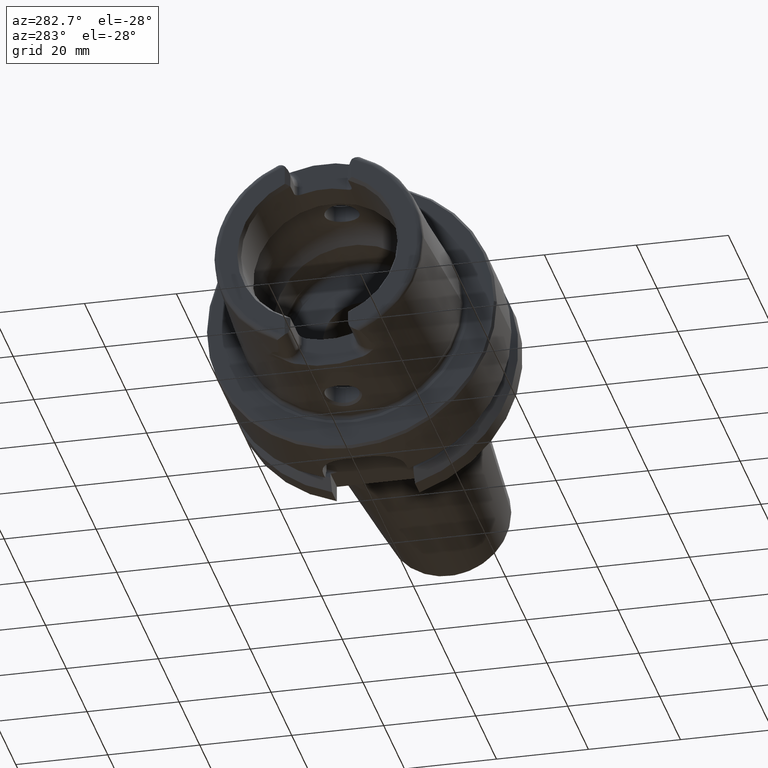
[diagram: clean part render]
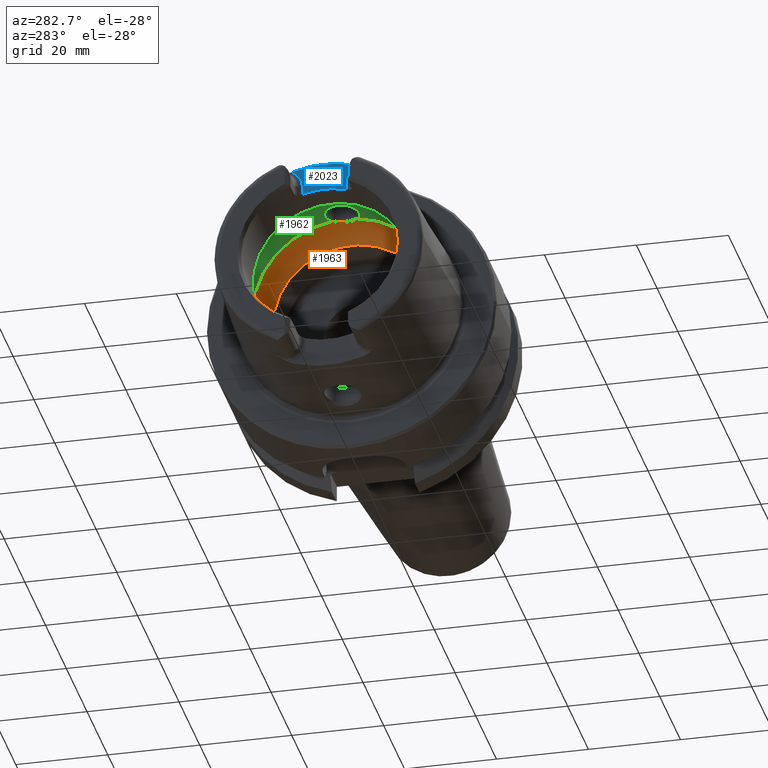
[diagram: same view with three faces highlighted in distinct colors, each labeled with its STEP entity id]
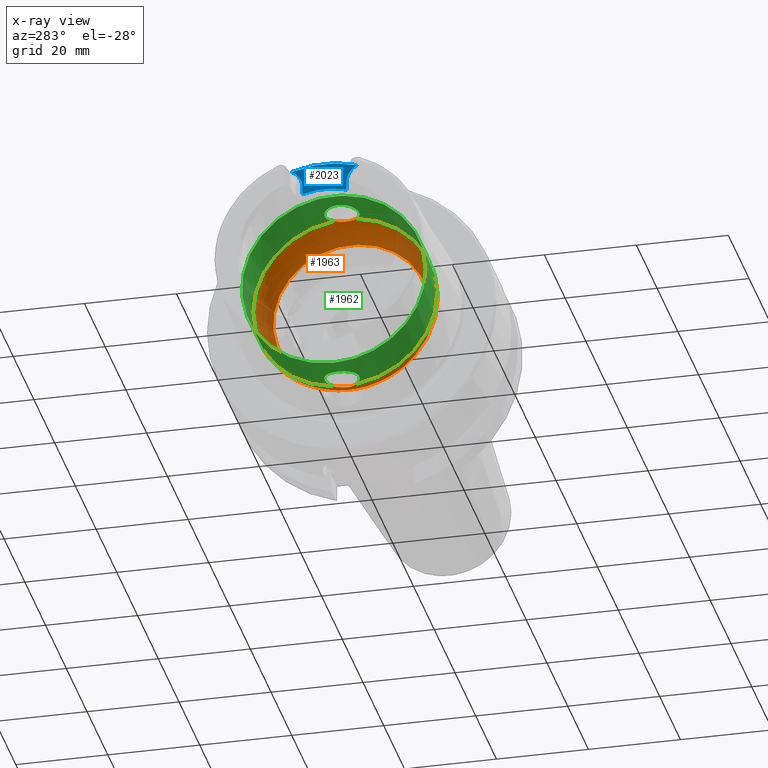
[diagram: x-ray of the same camera — body ghosted, the three highlighted faces saturated]
A machine part, auxiliary view with three faces highlighted in distinct colors.
The next image is the same camera in x-ray (body ghosted, the three faces saturated) — at least one of them is partly hidden behind the body in this view.
Their STEP definitions:

[orange] entity #1963 — the highlighted toroidal blend (fillet) surface has major radius 12 mm and minor (blend) radius 8 mm.
#49=B_SPLINE_CURVE_WITH_KNOTS('',3,(#3456,#3457,#3458,#3459,#3460,#3461,
#3462,#3463,#3464,#3465,#3466,#3467),.UNSPECIFIED.,.F.,.F.,(4,2,2,2,2,4),
(-0.560647090003115,-0.432465132423936,-0.371738630353782,-0.32053783623797,
-0.287500355516274,-0.280385270121909),.UNSPECIFIED.);
#51=B_SPLINE_CURVE_WITH_KNOTS('',3,(#3500,#3501,#3502,#3503,#3504,#3505,
#3506,#3507,#3508,#3509),.UNSPECIFIED.,.F.,.F.,(4,2,2,2,4),(-0.280385270121909,
-0.256917987419631,-0.21744735037608,-0.138661357565599,0.),
 .UNSPECIFIED.);
#54=B_SPLINE_CURVE_WITH_KNOTS('',3,(#3625,#3626,#3627,#3628,#3629,#3630,
#3631,#3632,#3633,#3634,#3635,#3636),.UNSPECIFIED.,.F.,.F.,(4,2,2,2,2,4),
(-0.560647090003256,-0.432465132424011,-0.371738630353825,-0.32053783623799,
-0.287500355516289,-0.280385270121924),.UNSPECIFIED.);
#56=B_SPLINE_CURVE_WITH_KNOTS('',3,(#3669,#3670,#3671,#3672,#3673,#3674,
#3675,#3676,#3677,#3678),.UNSPECIFIED.,.F.,.F.,(4,2,2,2,4),(-0.280385270121924,
-0.256917987419636,-0.217447350376074,-0.138661357565593,0.),
 .UNSPECIFIED.);
#152=TOROIDAL_SURFACE('',#2150,12.,8.);
#238=FACE_OUTER_BOUND('',#360,.T.);
#360=EDGE_LOOP('',(#1472,#1473,#1474,#1475,#1476,#1477,#1478,#1479,#1480,
#1481,#1482));
#699=CIRCLE('',#2145,20.);
#702=CIRCLE('',#2148,20.);
#703=CIRCLE('',#2149,20.);
#704=CIRCLE('',#2151,17.);
#705=CIRCLE('',#2152,17.);
#706=CIRCLE('',#2153,8.);
#867=VERTEX_POINT('',#3453);
#868=VERTEX_POINT('',#3455);
#869=VERTEX_POINT('',#3468);
#872=VERTEX_POINT('',#3623);
#873=VERTEX_POINT('',#3624);
#874=VERTEX_POINT('',#3637);
#875=VERTEX_POINT('',#3681);
#878=VERTEX_POINT('',#3691);
#879=VERTEX_POINT('',#3692);
#1092=EDGE_CURVE('',#868,#867,#49,.T.);
#1094=EDGE_CURVE('',#867,#869,#51,.T.);
#1098=EDGE_CURVE('',#872,#873,#54,.T.);
#1100=EDGE_CURVE('',#873,#874,#56,.T.);
#1102=EDGE_CURVE('',#875,#872,#699,.T.);
#1106=EDGE_CURVE('',#869,#875,#702,.T.);
#1107=EDGE_CURVE('',#874,#868,#703,.T.);
#1108=EDGE_CURVE('',#878,#879,#704,.T.);
#1109=EDGE_CURVE('',#879,#878,#705,.T.);
#1110=EDGE_CURVE('',#879,#867,#706,.T.);
#1472=ORIENTED_EDGE('',*,*,#1108,.F.);
#1473=ORIENTED_EDGE('',*,*,#1109,.F.);
#1474=ORIENTED_EDGE('',*,*,#1110,.T.);
#1475=ORIENTED_EDGE('',*,*,#1094,.T.);
#1476=ORIENTED_EDGE('',*,*,#1106,.T.);
#1477=ORIENTED_EDGE('',*,*,#1102,.T.);
#1478=ORIENTED_EDGE('',*,*,#1098,.T.);
#1479=ORIENTED_EDGE('',*,*,#1100,.T.);
#1480=ORIENTED_EDGE('',*,*,#1107,.T.);
#1481=ORIENTED_EDGE('',*,*,#1092,.T.);
#1482=ORIENTED_EDGE('',*,*,#1110,.F.);
#1963=ADVANCED_FACE('',(#238),#152,.F.);
#2145=AXIS2_PLACEMENT_3D('',#3682,#2509,#2510);
#2148=AXIS2_PLACEMENT_3D('',#3688,#2516,#2517);
#2149=AXIS2_PLACEMENT_3D('',#3689,#2518,#2519);
#2150=AXIS2_PLACEMENT_3D('',#3690,#2520,#2521);
#2151=AXIS2_PLACEMENT_3D('',#3693,#2522,#2523);
#2152=AXIS2_PLACEMENT_3D('',#3694,#2524,#2525);
#2153=AXIS2_PLACEMENT_3D('',#3695,#2526,#2527);
#2509=DIRECTION('center_axis',(-1.,0.,0.));
#2510=DIRECTION('ref_axis',(0.,0.,1.));
#2516=DIRECTION('center_axis',(-1.,0.,0.));
#2517=DIRECTION('ref_axis',(0.,0.,1.));
#2518=DIRECTION('center_axis',(-1.,0.,0.));
#2519=DIRECTION('ref_axis',(0.,0.,1.));
#2520=DIRECTION('center_axis',(-1.,0.,0.));
#2521=DIRECTION('ref_axis',(0.,0.,1.));
#2522=DIRECTION('center_axis',(-1.,0.,0.));
#2523=DIRECTION('ref_axis',(0.,0.,1.));
#2524=DIRECTION('center_axis',(-1.,0.,0.));
#2525=DIRECTION('ref_axis',(0.,0.,1.));
#2526=DIRECTION('center_axis',(0.,1.,-1.22464679914735E-16));
#2527=DIRECTION('ref_axis',(0.,-1.22464679914735E-16,-1.));
#3453=CARTESIAN_POINT('',(-5.25,3.07683831259085E-16,-19.9378825251564));
#3455=CARTESIAN_POINT('',(-6.2449979983984,2.54410376580264,-19.8375284758165));
#3456=CARTESIAN_POINT('Ctrl Pts',(-6.2449979983984,2.54410376580263,-19.8375284758165));
#3457=CARTESIAN_POINT('Ctrl Pts',(-5.9563832733696,2.23156378381208,-19.877610794847));
#3458=CARTESIAN_POINT('Ctrl Pts',(-5.72238184052007,1.87139505615745,-19.9007586679726));
#3459=CARTESIAN_POINT('Ctrl Pts',(-5.47415257397377,1.29299577523533,-19.9221291461079));
#3460=CARTESIAN_POINT('Ctrl Pts',(-5.40951125063364,1.10084807786171,-19.9269865934584));
#3461=CARTESIAN_POINT('Ctrl Pts',(-5.31953029252225,0.738763665580492,-19.9333991732415));
#3462=CARTESIAN_POINT('Ctrl Pts',(-5.28971989928313,0.57048989328573,-19.9353426103026));
#3463=CARTESIAN_POINT('Ctrl Pts',(-5.25970604483208,0.291260075331645,-19.9372753146995));
#3464=CARTESIAN_POINT('Ctrl Pts',(-5.25276504295341,0.181279004510485,-19.9377089305339));
#3465=CARTESIAN_POINT('Ctrl Pts',(-5.25022501552319,0.0474369436209427,
-19.9378684144199));
#3466=CARTESIAN_POINT('Ctrl Pts',(-5.25,0.0237178817918345,-19.9378825251564));
#3467=CARTESIAN_POINT('Ctrl Pts',(-5.25,1.73633857888389E-16,-19.9378825251564));
#3468=CARTESIAN_POINT('',(-6.2449979983984,-2.54410376580264,-19.8375284758165));
#3500=CARTESIAN_POINT('Ctrl Pts',(-5.25,1.73633857888389E-16,-19.9378825251564));
#3501=CARTESIAN_POINT('Ctrl Pts',(-5.25,-0.0782273446147222,-19.9378825251564));
#3502=CARTESIAN_POINT('Ctrl Pts',(-5.25244785081342,-0.15644185230388,-19.9377296492436));
#3503=CARTESIAN_POINT('Ctrl Pts',(-5.26557067654327,-0.365860616871457,
-19.9368989370107));
#3504=CARTESIAN_POINT('Ctrl Pts',(-5.2807081654794,-0.496671474530444,-19.9359382432917));
#3505=CARTESIAN_POINT('Ctrl Pts',(-5.34656166936447,-0.885366242555149,
-19.9315392091305));
#3506=CARTESIAN_POINT('Ctrl Pts',(-5.41752174824152,-1.13897710923821,-19.9266508951874));
#3507=CARTESIAN_POINT('Ctrl Pts',(-5.68473945553282,-1.81246400136134,-19.9044561094296));
#3508=CARTESIAN_POINT('Ctrl Pts',(-5.93280828188796,-2.20603449935731,-19.880884849314));
#3509=CARTESIAN_POINT('Ctrl Pts',(-6.2449979983984,-2.54410376580263,-19.8375284758165));
#3623=CARTESIAN_POINT('',(-6.2449979983984,-2.54410376580264,19.8375284758165));
#3624=CARTESIAN_POINT('',(-5.25,4.81156178856766E-16,19.9378825251564));
#3625=CARTESIAN_POINT('Ctrl Pts',(-6.2449979983984,-2.54410376580264,19.8375284758165));
#3626=CARTESIAN_POINT('Ctrl Pts',(-5.9563832733696,-2.23156378381209,19.877610794847));
#3627=CARTESIAN_POINT('Ctrl Pts',(-5.72238184052007,-1.87139505615746,19.9007586679726));
#3628=CARTESIAN_POINT('Ctrl Pts',(-5.47415257397376,-1.29299577523533,19.9221291461079));
#3629=CARTESIAN_POINT('Ctrl Pts',(-5.40951125063363,-1.10084807786172,19.9269865934584));
#3630=CARTESIAN_POINT('Ctrl Pts',(-5.31953029252225,-0.738763665580501,
19.9333991732415));
#3631=CARTESIAN_POINT('Ctrl Pts',(-5.28971989928313,-0.570489893285745,
19.9353426103026));
#3632=CARTESIAN_POINT('Ctrl Pts',(-5.25970604483207,-0.291260075331669,
19.9372753146995));
#3633=CARTESIAN_POINT('Ctrl Pts',(-5.2527650429534,-0.181279004510531,19.9377089305339));
#3634=CARTESIAN_POINT('Ctrl Pts',(-5.25022501552319,-0.0474369436209401,
19.9378684144199));
#3635=CARTESIAN_POINT('Ctrl Pts',(-5.25,-0.0237178817918311,19.9378825251564));
#3636=CARTESIAN_POINT('Ctrl Pts',(-5.25,5.15920899939407E-16,19.9378825251564));
#3637=CARTESIAN_POINT('',(-6.2449979983984,2.54410376580264,19.8375284758165));
#3669=CARTESIAN_POINT('Ctrl Pts',(-5.25,5.15920899939407E-16,19.9378825251564));
#3670=CARTESIAN_POINT('Ctrl Pts',(-5.25,0.0782273446147462,19.9378825251564));
#3671=CARTESIAN_POINT('Ctrl Pts',(-5.25244785081342,0.156441852303891,19.9377296492436));
#3672=CARTESIAN_POINT('Ctrl Pts',(-5.26557067654326,0.36586061687142,19.9368989370107));
#3673=CARTESIAN_POINT('Ctrl Pts',(-5.28070816547939,0.496671474530425,19.9359382432917));
#3674=CARTESIAN_POINT('Ctrl Pts',(-5.34656166936446,0.885366242555101,19.9315392091305));
#3675=CARTESIAN_POINT('Ctrl Pts',(-5.41752174824151,1.13897710923819,19.9266508951874));
#3676=CARTESIAN_POINT('Ctrl Pts',(-5.68473945553283,1.81246400136138,19.9044561094296));
#3677=CARTESIAN_POINT('Ctrl Pts',(-5.93280828188797,2.20603449935733,19.880884849314));
#3678=CARTESIAN_POINT('Ctrl Pts',(-6.2449979983984,2.54410376580264,19.8375284758165));
#3681=CARTESIAN_POINT('',(-6.2449979983984,-20.,2.44929359829471E-15));
#3682=CARTESIAN_POINT('Origin',(-6.2449979983984,0.,0.));
#3688=CARTESIAN_POINT('Origin',(-6.2449979983984,0.,0.));
#3689=CARTESIAN_POINT('Origin',(-6.2449979983984,0.,0.));
#3690=CARTESIAN_POINT('Origin',(-6.2449979983984,0.,0.));
#3691=CARTESIAN_POINT('',(0.,-17.,2.0818995585505E-15));
#3692=CARTESIAN_POINT('',(0.,-2.0818995585505E-15,-17.));
#3693=CARTESIAN_POINT('Origin',(0.,0.,0.));
#3694=CARTESIAN_POINT('Origin',(0.,0.,0.));
#3695=CARTESIAN_POINT('Origin',(-6.2449979983984,-1.46957615897682E-15,
-12.));

[blue] entity #2023 — the highlighted planar face has unit normal (-1, 0, 0).
#142=PLANE('',#2260);
#298=FACE_OUTER_BOUND('',#421,.T.);
#421=EDGE_LOOP('',(#1792,#1793,#1794,#1795,#1796,#1797));
#541=LINE('',#4207,#647);
#542=LINE('',#4236,#648);
#647=VECTOR('',#2738,10.);
#648=VECTOR('',#2751,10.);
#697=CIRCLE('',#2140,23.0180260521042);
#742=CIRCLE('',#2236,4.38);
#744=CIRCLE('',#2239,4.38);
#754=CIRCLE('',#2261,17.);
#864=VERTEX_POINT('',#3398);
#865=VERTEX_POINT('',#3413);
#958=VERTEX_POINT('',#4204);
#959=VERTEX_POINT('',#4206);
#960=VERTEX_POINT('',#4221);
#961=VERTEX_POINT('',#4225);
#1087=EDGE_CURVE('',#864,#865,#697,.T.);
#1234=EDGE_CURVE('',#958,#959,#541,.T.);
#1236=EDGE_CURVE('',#865,#958,#742,.T.);
#1238=EDGE_CURVE('',#960,#864,#744,.T.);
#1240=EDGE_CURVE('',#961,#960,#542,.T.);
#1256=EDGE_CURVE('',#959,#961,#754,.T.);
#1792=ORIENTED_EDGE('',*,*,#1236,.F.);
#1793=ORIENTED_EDGE('',*,*,#1087,.F.);
#1794=ORIENTED_EDGE('',*,*,#1238,.F.);
#1795=ORIENTED_EDGE('',*,*,#1240,.F.);
#1796=ORIENTED_EDGE('',*,*,#1256,.F.);
#1797=ORIENTED_EDGE('',*,*,#1234,.F.);
#2023=ADVANCED_FACE('',(#298),#142,.T.);
#2140=AXIS2_PLACEMENT_3D('',#3414,#2496,#2497);
#2236=AXIS2_PLACEMENT_3D('',#4219,#2741,#2742);
#2239=AXIS2_PLACEMENT_3D('',#4223,#2747,#2748);
#2260=AXIS2_PLACEMENT_3D('',#4284,#2794,#2795);
#2261=AXIS2_PLACEMENT_3D('',#4285,#2796,#2797);
#2496=DIRECTION('center_axis',(1.,0.,0.));
#2497=DIRECTION('ref_axis',(0.,1.,0.));
#2738=DIRECTION('',(0.,-1.58830189502884E-16,-1.));
#2741=DIRECTION('center_axis',(-1.,0.,0.));
#2742=DIRECTION('ref_axis',(0.,0.601141749549969,0.799142413433302));
#2747=DIRECTION('center_axis',(-1.,0.,0.));
#2748=DIRECTION('ref_axis',(0.,-0.601141749549969,0.799142413433301));
#2751=DIRECTION('',(0.,-1.58830189502884E-16,1.));
#2794=DIRECTION('center_axis',(-1.,0.,0.));
#2795=DIRECTION('ref_axis',(0.,0.,1.));
#2796=DIRECTION('center_axis',(-1.,0.,0.));
#2797=DIRECTION('ref_axis',(0.,1.,0.));
#3398=CARTESIAN_POINT('',(-26.,7.14127219004964,21.8822246319466));
#3413=CARTESIAN_POINT('',(-26.,-7.14127219004964,21.8822246319466));
#3414=CARTESIAN_POINT('Origin',(-26.,0.,0.));
#4204=CARTESIAN_POINT('',(-26.,-4.77,17.99));
#4206=CARTESIAN_POINT('',(-26.,-4.77,16.3170800083839));
#4207=CARTESIAN_POINT('',(-26.,-4.77,14.75));
#4219=CARTESIAN_POINT('Origin',(-26.,-9.15,17.99));
#4221=CARTESIAN_POINT('',(-26.,4.77,17.99));
#4223=CARTESIAN_POINT('Origin',(-26.,9.15,17.99));
#4225=CARTESIAN_POINT('',(-26.,4.77,16.3170800083839));
#4236=CARTESIAN_POINT('',(-26.,4.77,18.245));
#4284=CARTESIAN_POINT('Origin',(-26.,-2.22044604925031E-15,18.5));
#4285=CARTESIAN_POINT('Origin',(-26.,0.,0.));

[green] entity #1962 — the highlighted cylindrical surface (bore or boss wall) has radius 20 mm, axis along (-1, 0, 0).
#50=B_SPLINE_CURVE_WITH_KNOTS('',3,(#3469,#3470,#3471,#3472,#3473,#3474,
#3475,#3476,#3477,#3478,#3479,#3480,#3481,#3482,#3483,#3484,#3485,#3486,
#3487,#3488,#3489,#3490,#3491,#3492,#3493,#3494,#3495,#3496,#3497,#3498,
#3499),.UNSPECIFIED.,.F.,.F.,(4,2,2,2,2,2,2,2,2,2,2,3,2,2,4),(-1.43107314142755,
-1.4161913421645,-1.27456976724955,-1.1329481923346,-0.991326617419658,
-0.849705042504712,-0.708089569336007,-0.566474096167302,-0.424858622998598,
-0.283243149829893,-0.141621574914946,0.,0.141621574914946,0.283243149829893,
0.298124949100151),.UNSPECIFIED.);
#55=B_SPLINE_CURVE_WITH_KNOTS('',3,(#3638,#3639,#3640,#3641,#3642,#3643,
#3644,#3645,#3646,#3647,#3648,#3649,#3650,#3651,#3652,#3653,#3654,#3655,
#3656,#3657,#3658,#3659,#3660,#3661,#3662,#3663,#3664,#3665,#3666,#3667,
#3668),.UNSPECIFIED.,.F.,.F.,(4,2,2,3,2,2,2,2,2,2,2,2,2,2,4),(-0.298124949092949,
-0.283243149829893,-0.141621574914946,0.,0.141621574914946,0.283243149829893,
0.424858622998598,0.566474096167302,0.708089569336007,0.849705042504712,
0.991326617419658,1.1329481923346,1.27456976724955,1.4161913421645,1.43107314143475),
 .UNSPECIFIED.);
#184=CYLINDRICAL_SURFACE('',#2144,20.);
#237=FACE_OUTER_BOUND('',#359,.T.);
#359=EDGE_LOOP('',(#1463,#1464,#1465,#1466,#1467,#1468,#1469,#1470,#1471));
#492=LINE('',#3684,#598);
#598=VECTOR('',#2511,20.);
#699=CIRCLE('',#2145,20.);
#700=CIRCLE('',#2146,20.);
#701=CIRCLE('',#2147,20.);
#702=CIRCLE('',#2148,20.);
#703=CIRCLE('',#2149,20.);
#868=VERTEX_POINT('',#3455);
#869=VERTEX_POINT('',#3468);
#872=VERTEX_POINT('',#3623);
#874=VERTEX_POINT('',#3637);
#875=VERTEX_POINT('',#3681);
#876=VERTEX_POINT('',#3683);
#877=VERTEX_POINT('',#3685);
#1093=EDGE_CURVE('',#869,#868,#50,.T.);
#1099=EDGE_CURVE('',#874,#872,#55,.T.);
#1102=EDGE_CURVE('',#875,#872,#699,.T.);
#1103=EDGE_CURVE('',#875,#876,#492,.T.);
#1104=EDGE_CURVE('',#876,#877,#700,.T.);
#1105=EDGE_CURVE('',#877,#876,#701,.T.);
#1106=EDGE_CURVE('',#869,#875,#702,.T.);
#1107=EDGE_CURVE('',#874,#868,#703,.T.);
#1463=ORIENTED_EDGE('',*,*,#1099,.T.);
#1464=ORIENTED_EDGE('',*,*,#1102,.F.);
#1465=ORIENTED_EDGE('',*,*,#1103,.T.);
#1466=ORIENTED_EDGE('',*,*,#1104,.T.);
#1467=ORIENTED_EDGE('',*,*,#1105,.T.);
#1468=ORIENTED_EDGE('',*,*,#1103,.F.);
#1469=ORIENTED_EDGE('',*,*,#1106,.F.);
#1470=ORIENTED_EDGE('',*,*,#1093,.T.);
#1471=ORIENTED_EDGE('',*,*,#1107,.F.);
#1962=ADVANCED_FACE('',(#237),#184,.F.);
#2144=AXIS2_PLACEMENT_3D('',#3680,#2507,#2508);
#2145=AXIS2_PLACEMENT_3D('',#3682,#2509,#2510);
#2146=AXIS2_PLACEMENT_3D('',#3686,#2512,#2513);
#2147=AXIS2_PLACEMENT_3D('',#3687,#2514,#2515);
#2148=AXIS2_PLACEMENT_3D('',#3688,#2516,#2517);
#2149=AXIS2_PLACEMENT_3D('',#3689,#2518,#2519);
#2507=DIRECTION('center_axis',(-1.,0.,0.));
#2508=DIRECTION('ref_axis',(0.,1.,0.));
#2509=DIRECTION('center_axis',(-1.,0.,0.));
#2510=DIRECTION('ref_axis',(0.,0.,1.));
#2511=DIRECTION('',(-1.,0.,0.));
#2512=DIRECTION('center_axis',(-1.,0.,0.));
#2513=DIRECTION('ref_axis',(0.,0.,1.));
#2514=DIRECTION('center_axis',(-1.,0.,0.));
#2515=DIRECTION('ref_axis',(0.,0.,1.));
#2516=DIRECTION('center_axis',(-1.,0.,0.));
#2517=DIRECTION('ref_axis',(0.,0.,1.));
#2518=DIRECTION('center_axis',(-1.,0.,0.));
#2519=DIRECTION('ref_axis',(0.,0.,1.));
#3455=CARTESIAN_POINT('',(-6.2449979983984,2.54410376580264,-19.8375284758165));
#3468=CARTESIAN_POINT('',(-6.2449979983984,-2.54410376580264,-19.8375284758165));
#3469=CARTESIAN_POINT('Ctrl Pts',(-6.2449979983984,-2.54410376580264,-19.8375284758165));
#3470=CARTESIAN_POINT('Ctrl Pts',(-6.27894943420456,-2.58086966932454,-19.8328133585216));
#3471=CARTESIAN_POINT('Ctrl Pts',(-6.31342869219743,-2.61672955109653,-19.8281105439642));
#3472=CARTESIAN_POINT('Ctrl Pts',(-6.68067160381732,-2.98397246271642,-19.7789868876592));
#3473=CARTESIAN_POINT('Ctrl Pts',(-7.10159661632629,-3.27238367725626,-19.731429741537));
#3474=CARTESIAN_POINT('Ctrl Pts',(-8.0251754070192,-3.65542701546408,-19.6640704965084));
#3475=CARTESIAN_POINT('Ctrl Pts',(-8.52792808361685,-3.75,-19.6452920568771));
#3476=CARTESIAN_POINT('Ctrl Pts',(-9.47207191638316,-3.75,-19.6452920568771));
#3477=CARTESIAN_POINT('Ctrl Pts',(-9.97482459298081,-3.65542701546408,-19.6640704965084));
#3478=CARTESIAN_POINT('Ctrl Pts',(-10.8984033836737,-3.27238367725626,-19.731429741537));
#3479=CARTESIAN_POINT('Ctrl Pts',(-11.3193283961827,-2.98397246271642,-19.7789868876592));
#3480=CARTESIAN_POINT('Ctrl Pts',(-11.9839581446669,-2.31934271423217,-19.8678900149943));
#3481=CARTESIAN_POINT('Ctrl Pts',(-12.2723805817074,-1.89841159537053,-19.9150796801946));
#3482=CARTESIAN_POINT('Ctrl Pts',(-12.6554320620407,-0.974811677040414,
-19.9815942165963));
#3483=CARTESIAN_POINT('Ctrl Pts',(-12.75,-0.472051577229017,-20.));
#3484=CARTESIAN_POINT('Ctrl Pts',(-12.75,0.472051577229015,-20.));
#3485=CARTESIAN_POINT('Ctrl Pts',(-12.6554320620407,0.974811677040408,-19.9815942165963));
#3486=CARTESIAN_POINT('Ctrl Pts',(-12.2723805817074,1.89841159537052,-19.9150796801946));
#3487=CARTESIAN_POINT('Ctrl Pts',(-11.9839581446669,2.31934271423217,-19.8678900149943));
#3488=CARTESIAN_POINT('Ctrl Pts',(-11.3193283961827,2.98397246271642,-19.7789868876592));
#3489=CARTESIAN_POINT('Ctrl Pts',(-10.8984033836737,3.27238367725626,-19.731429741537));
#3490=CARTESIAN_POINT('Ctrl Pts',(-9.97482459298081,3.65542701546408,-19.6640704965084));
#3491=CARTESIAN_POINT('Ctrl Pts',(-9.47207191638316,3.75,-19.6452920568771));
#3492=CARTESIAN_POINT('Ctrl Pts',(-9.,3.75,-19.6452920568771));
#3493=CARTESIAN_POINT('Ctrl Pts',(-8.52792808361685,3.75,-19.6452920568771));
#3494=CARTESIAN_POINT('Ctrl Pts',(-8.0251754070192,3.65542701546408,-19.6640704965084));
#3495=CARTESIAN_POINT('Ctrl Pts',(-7.10159661632629,3.27238367725626,-19.731429741537));
#3496=CARTESIAN_POINT('Ctrl Pts',(-6.68067160381732,2.98397246271642,-19.7789868876592));
#3497=CARTESIAN_POINT('Ctrl Pts',(-6.31342869218053,2.61672955107963,-19.8281105439665));
#3498=CARTESIAN_POINT('Ctrl Pts',(-6.27894943419011,2.5808696693089,-19.8328133585236));
#3499=CARTESIAN_POINT('Ctrl Pts',(-6.2449979983984,2.54410376580264,-19.8375284758165));
#3623=CARTESIAN_POINT('',(-6.2449979983984,-2.54410376580264,19.8375284758165));
#3637=CARTESIAN_POINT('',(-6.2449979983984,2.54410376580264,19.8375284758165));
#3638=CARTESIAN_POINT('Ctrl Pts',(-6.2449979983984,2.54410376580264,19.8375284758165));
#3639=CARTESIAN_POINT('Ctrl Pts',(-6.27894943420456,2.58086966932454,19.8328133585216));
#3640=CARTESIAN_POINT('Ctrl Pts',(-6.31342869219742,2.61672955109653,19.8281105439642));
#3641=CARTESIAN_POINT('Ctrl Pts',(-6.68067160381731,2.98397246271642,19.7789868876592));
#3642=CARTESIAN_POINT('Ctrl Pts',(-7.10159661632629,3.27238367725626,19.731429741537));
#3643=CARTESIAN_POINT('Ctrl Pts',(-8.02517540701919,3.65542701546408,19.6640704965084));
#3644=CARTESIAN_POINT('Ctrl Pts',(-8.52792808361684,3.75,19.6452920568771));
#3645=CARTESIAN_POINT('Ctrl Pts',(-9.,3.75,19.6452920568771));
#3646=CARTESIAN_POINT('Ctrl Pts',(-9.47207191638315,3.75,19.6452920568771));
#3647=CARTESIAN_POINT('Ctrl Pts',(-9.97482459298081,3.65542701546408,19.6640704965084));
#3648=CARTESIAN_POINT('Ctrl Pts',(-10.8984033836737,3.27238367725626,19.731429741537));
#3649=CARTESIAN_POINT('Ctrl Pts',(-11.3193283961827,2.98397246271642,19.7789868876592));
#3650=CARTESIAN_POINT('Ctrl Pts',(-11.9839581446669,2.31934271423217,19.8678900149943));
#3651=CARTESIAN_POINT('Ctrl Pts',(-12.2723805817074,1.89841159537052,19.9150796801946));
#3652=CARTESIAN_POINT('Ctrl Pts',(-12.6554320620407,0.97481167704041,19.9815942165963));
#3653=CARTESIAN_POINT('Ctrl Pts',(-12.75,0.472051577229015,20.));
#3654=CARTESIAN_POINT('Ctrl Pts',(-12.75,-0.472051577229017,20.));
#3655=CARTESIAN_POINT('Ctrl Pts',(-12.6554320620407,-0.974811677040414,
19.9815942165963));
#3656=CARTESIAN_POINT('Ctrl Pts',(-12.2723805817074,-1.89841159537053,19.9150796801946));
#3657=CARTESIAN_POINT('Ctrl Pts',(-11.9839581446669,-2.31934271423217,19.8678900149943));
#3658=CARTESIAN_POINT('Ctrl Pts',(-11.3193283961827,-2.98397246271642,19.7789868876592));
#3659=CARTESIAN_POINT('Ctrl Pts',(-10.8984033836737,-3.27238367725626,19.731429741537));
#3660=CARTESIAN_POINT('Ctrl Pts',(-9.9748245929808,-3.65542701546408,19.6640704965084));
#3661=CARTESIAN_POINT('Ctrl Pts',(-9.47207191638315,-3.75,19.6452920568771));
#3662=CARTESIAN_POINT('Ctrl Pts',(-8.52792808361684,-3.75,19.6452920568771));
#3663=CARTESIAN_POINT('Ctrl Pts',(-8.02517540701919,-3.65542701546408,19.6640704965084));
#3664=CARTESIAN_POINT('Ctrl Pts',(-7.10159661632629,-3.27238367725626,19.731429741537));
#3665=CARTESIAN_POINT('Ctrl Pts',(-6.68067160381731,-2.98397246271642,19.7789868876592));
#3666=CARTESIAN_POINT('Ctrl Pts',(-6.31342869218052,-2.61672955107963,19.8281105439665));
#3667=CARTESIAN_POINT('Ctrl Pts',(-6.27894943419011,-2.5808696693089,19.8328133585236));
#3668=CARTESIAN_POINT('Ctrl Pts',(-6.2449979983984,-2.54410376580264,19.8375284758165));
#3680=CARTESIAN_POINT('Origin',(-11.5812812165501,0.,0.));
#3681=CARTESIAN_POINT('',(-6.2449979983984,-20.,2.44929359829471E-15));
#3682=CARTESIAN_POINT('Origin',(-6.2449979983984,0.,0.));
#3683=CARTESIAN_POINT('',(-16.9175644347018,-20.,2.44929359829471E-15));
#3684=CARTESIAN_POINT('',(-11.5812812165501,-20.,2.44929359829471E-15));
#3685=CARTESIAN_POINT('',(-16.9175644347018,-2.44929359829471E-15,-20.));
#3686=CARTESIAN_POINT('Origin',(-16.9175644347018,0.,0.));
#3687=CARTESIAN_POINT('Origin',(-16.9175644347018,0.,0.));
#3688=CARTESIAN_POINT('Origin',(-6.2449979983984,0.,0.));
#3689=CARTESIAN_POINT('Origin',(-6.2449979983984,0.,0.));